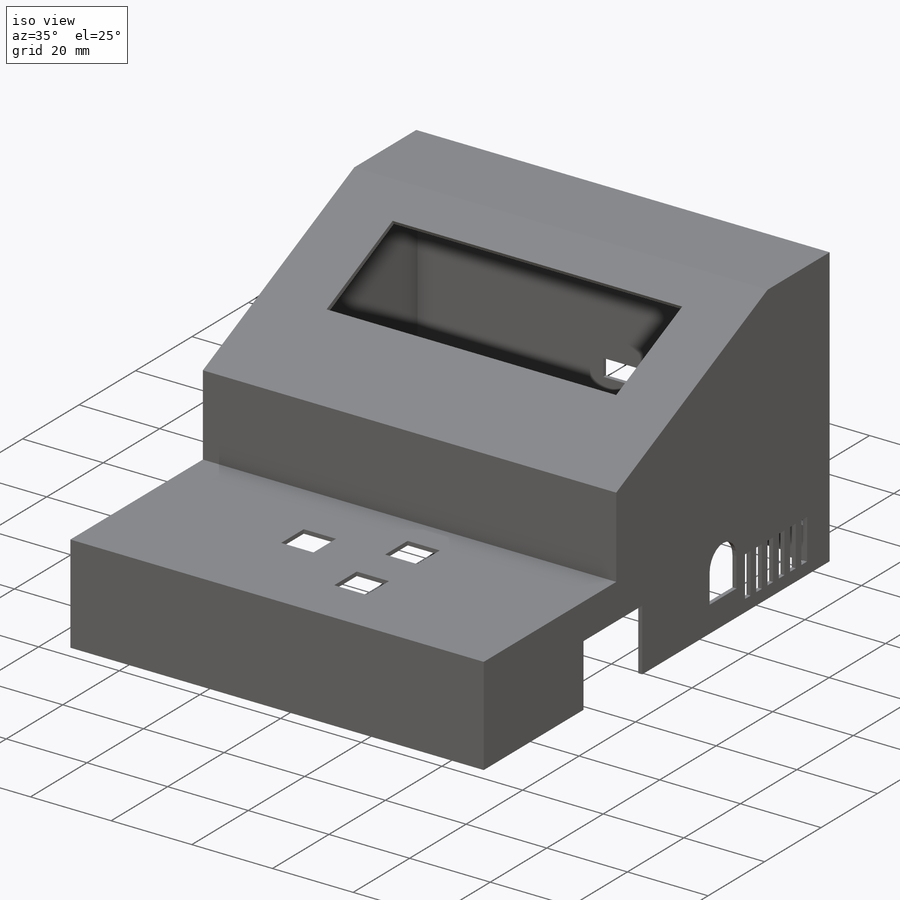
[diagram: iso view]
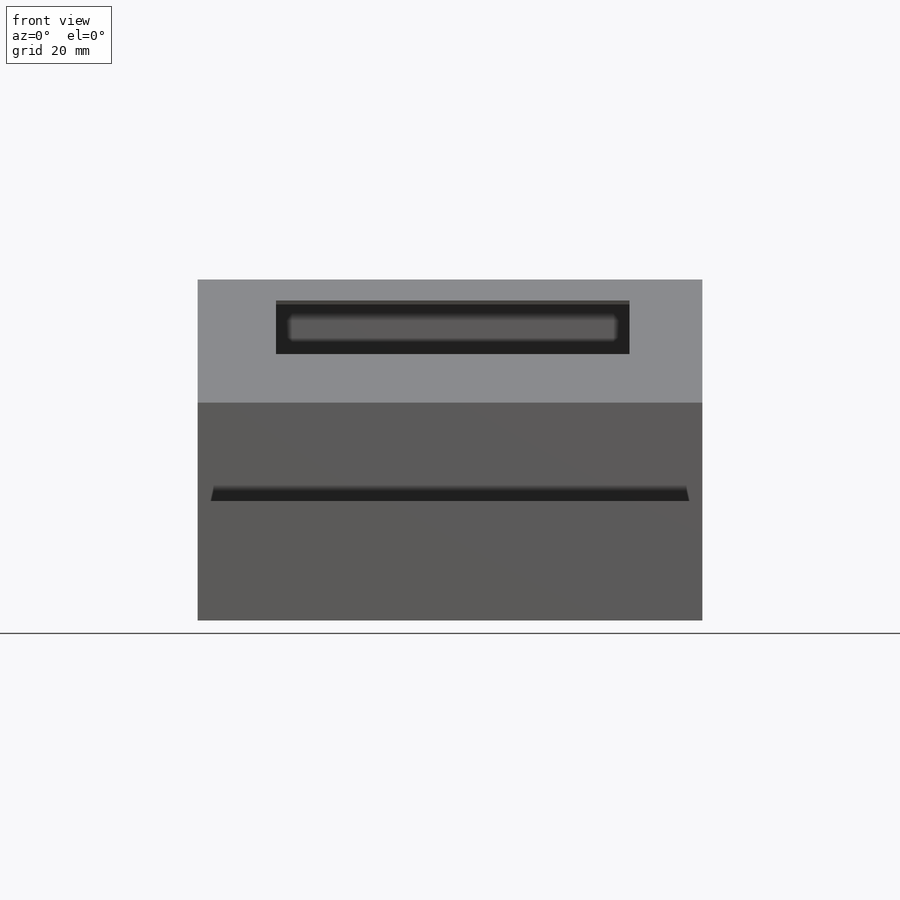
[diagram: front view]
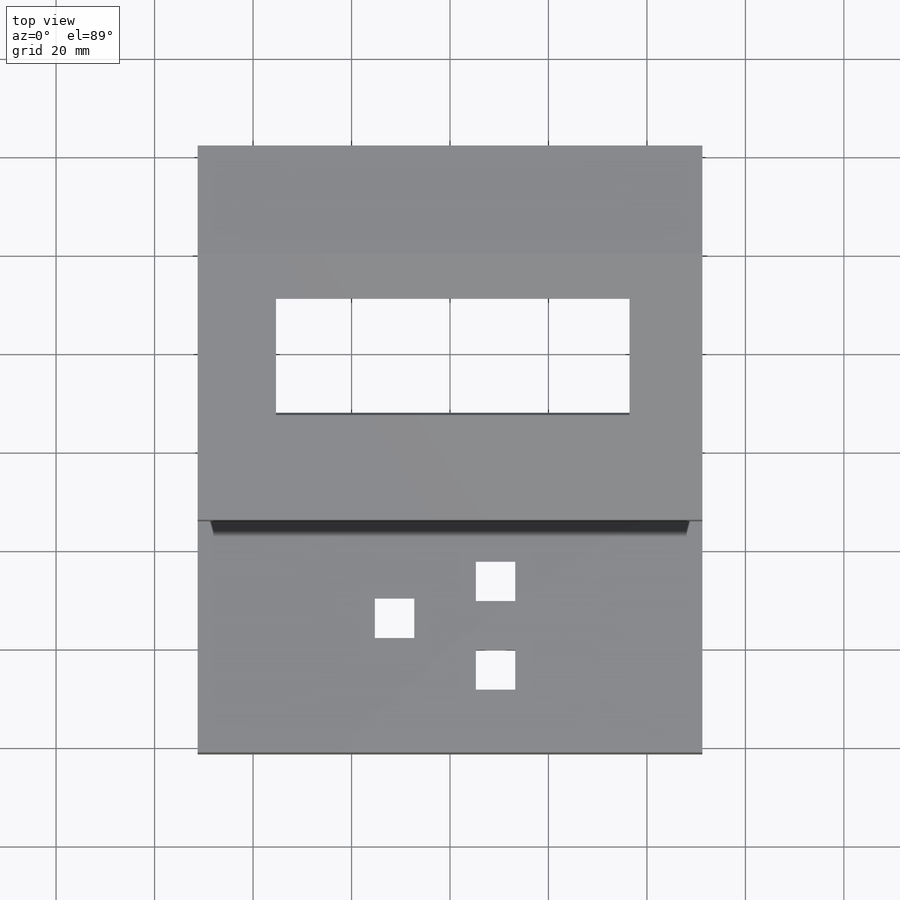
[diagram: top view]
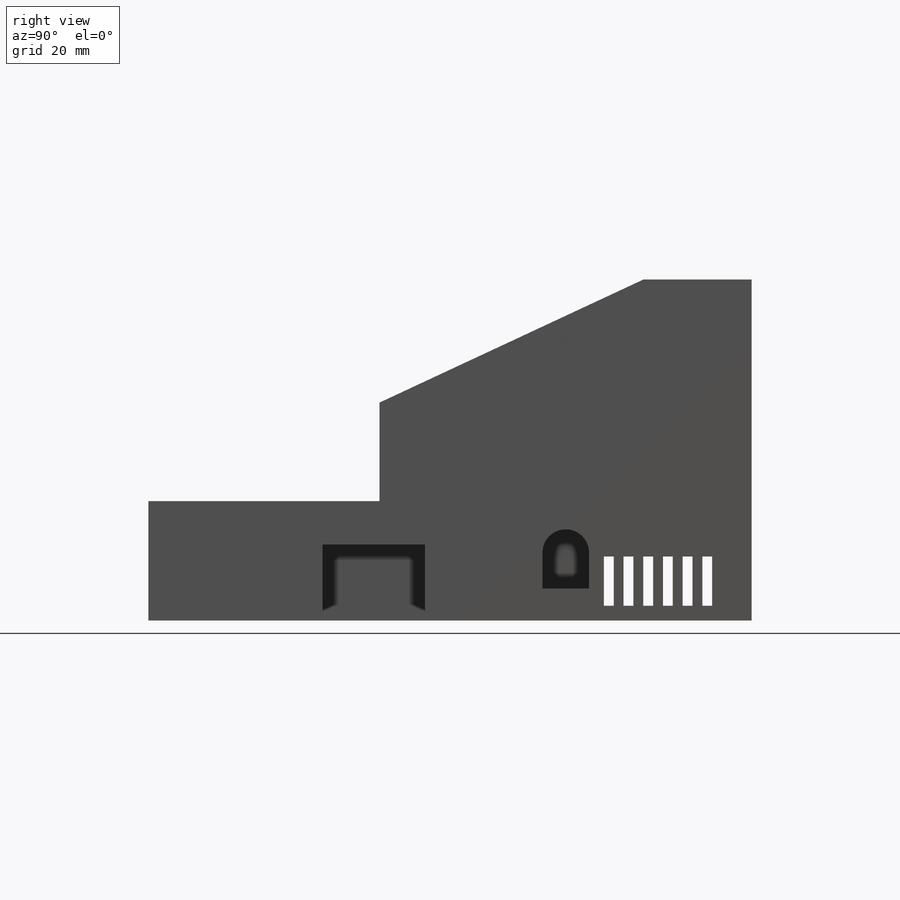
[diagram: right view]
SOLIDWORKS PART (.sldprt)
format: sldprt  version: not decoded by parser v0  size: 1,126,400 bytes
history: native  units: mm
features: sketch x52, cut_extrude x32, extrude x19, plane x3, pattern_linear x3, material x1 (+8 scaffold rows collapsed)
feature tree (118):
  scaffold x8  (default folders/planes/origin — collapsed)
  material  "Materiale <non specificato>"
  plane  "Piano frontale"
  plane  "Piano superiore"
  plane  "Piano destro"
  sketch  "Schizzo1"  dims[D1=124.0mm D2=104.0mm D3=~91.352485mm D4=100.5mm D5=120.5mm]
  extrude  "Estrusione-Estrusione1"  Depth=25.5mm
  sketch  "Schizzo3"  dims[D1=5.0mm D2=5.0mm D3=5.0mm D4=5.0mm D5=5.0mm D6=5.0mm D7=5.0mm D8=5.0mm]
  extrude  "Estrusione-Estrusione2"  Depth=10mm
  sketch  "Schizzo4"  dims[D1=47.67mm]
  extrude  "Estrusione-Estrusione3"  Depth=1.75mm
  sketch  "Schizzo5"  dims[c1.D1=23.75mm c1.D2=36.75mm c1.D3=8.0mm c1.D4=8.0mm c2.D2=36.75mm]
  cut_extrude  "Taglio-Estrusione1"  Depth=12.75mm
  sketch  "Schizzo8"  dims[D1=12.5mm D2=13.25mm D3=8.0mm D4=8.0mm D5=8.0mm D6=10.0mm D7=8.0mm]
  cut_extrude  "Taglio-Estrusione2"  Depth=12.75mm
  sketch  "Schizzo10"  dims[D1=53.61mm D2=53.61mm]
  extrude  "Estrusione-Estrusione4"  Depth=25mm
  sketch  "Schizzo11"
  extrude  "Estrusione-Estrusione5"  Depth=1.75mm
  sketch  "Schizzo13"
  extrude  "Estrusione-Estrusione6"  Depth=26.75mm
  sketch  "Schizzo14"
  cut_extrude  "Taglio-Estrusione3"  Depth=41.75mm
  sketch  "Schizzo16"  dims[D1=23.06mm D2=25.8mm D3=16.4mm D4=71.8mm]
  cut_extrude  "Taglio-Estrusione4"  Depth=10mm
  sketch  "Schizzo17"
  extrude  "Estrusione-Estrusione7"  Depth=20mm
  sketch  "Schizzo19"
  extrude  "Estrusione-Estrusione8"  Depth=0.25mm
  sketch  "Schizzo20"
  extrude  "Estrusione-Estrusione9"  Depth=0.25mm
  sketch  "Schizzo21"
  cut_extrude  "Taglio-Estrusione5"  Depth=0.25mm
  sketch  "Schizzo22"
  cut_extrude  "Taglio-Estrusione6"  Depth=0.25mm
  sketch  "Schizzo23"
  extrude  "Estrusione-Estrusione10"  Depth=0.25mm
  sketch  "Schizzo37"
  extrude  "Estrusione-Estrusione17"  Depth=20mm
  sketch  "Schizzo38"
  cut_extrude  "Taglio-Estrusione14"  Depth=20mm
  sketch  "Schizzo39"  dims[D1=1.75mm]
  extrude  "Estrusione-Estrusione18"  [1 undecoded]
  sketch  "Schizzo31"
  extrude  "Estrusione-Estrusione14"  Depth=0.25mm
  sketch  "Schizzo32"
  extrude  "Estrusione-Estrusione15"  Depth=0.25mm
  sketch  "Schizzo33"
  cut_extrude  "Taglio-Estrusione11"  Depth=0.25mm
  sketch  "Schizzo34"
  cut_extrude  "Taglio-Estrusione12"  Depth=0.25mm
  sketch  "Schizzo35"
  cut_extrude  "Taglio-Estrusione13"  Depth=0.02mm
  sketch  "Schizzo36"
  extrude  "Estrusione-Estrusione16"  Depth=0.02mm
  sketch  "Schizzo40"
  extrude  "Estrusione-Estrusione19"  Depth=0.25mm
  sketch  "Schizzo41"
  cut_extrude  "Taglio-Estrusione15"  Depth=0.25mm
  sketch  "Schizzo42"
  extrude  "Estrusione-Estrusione20"  Depth=0.25mm
  sketch  "Schizzo43"
  cut_extrude  "Taglio-Estrusione16"  Depth=0.25mm
  sketch  "Schizzo44"
  extrude  "Estrusione-Estrusione21"  Depth=0.25mm
  sketch  "Schizzo45"
  cut_extrude  "Taglio-Estrusione17"  Depth=0.25mm
  sketch  "Schizzo46"
  cut_extrude  "Taglio-Estrusione18"  Depth=0.25mm
  sketch  "Schizzo48"
  cut_extrude  "Taglio-Estrusione19"  Depth=3mm
  sketch  "Schizzo49"
  cut_extrude  "Taglio-Estrusione20"  Depth=22.5mm
  sketch  "Schizzo50"
  cut_extrude  "Taglio-Estrusione21"  Depth=55.5mm
  sketch  "Schizzo51"
  cut_extrude  "Taglio-Estrusione22"  Depth=0.75mm
  sketch  "Schizzo52"
  cut_extrude  "Taglio-Estrusione23"  Depth=0.75mm
  sketch  "Schizzo53"
  cut_extrude  "Taglio-Estrusione24"  Depth=0.75mm
  sketch  "Schizzo54"
  cut_extrude  "Taglio-Estrusione25"  Depth=0.75mm
  sketch  "Schizzo55"
  cut_extrude  "Taglio-Estrusione26"  Depth=0.75mm
  sketch  "Schizzo56"
  cut_extrude  "Taglio-Estrusione27"  Depth=0.75mm
  sketch  "Schizzo57"
  cut_extrude  "Taglio-Estrusione28"  Depth=0.75mm
  sketch  "Schizzo3D1"
  cut_extrude  "Taglio-Estrusione29"  Depth=10mm
  sketch  "Schizzo58"
  sketch  "Schizzo59"  dims[D1=8.2mm D2=4.2mm D3=47.05mm D4=26.9mm]
  cut_extrude  "Taglio-Estrusione30"  Depth=10mm
  sketch  "Schizzo60"  dims[D1=33.0mm D2=9.5mm D3=6.5mm D4=7.25mm]
  cut_extrude  "Taglio-Estrusione31"  Depth=10mm
  sketch  "Schizzo61"  dims[D1=5.5mm D2=5.5mm D3=5.5mm D4=5.5mm D5=5.5mm D6=5.5mm D7=5.5mm D8=5.0mm]
  extrude  "Estrusione-Estrusione22"  Depth=8mm
  sketch  "Schizzo62"  dims[D1=1.8mm D2=1.8mm D3=1.8mm D4=1.8mm]
  cut_extrude  "Taglio-Estrusione32"  Depth=10mm
  sketch  "Schizzo63"  dims[D1=35.35mm D2=56.15mm D3=15.4mm]
  cut_extrude  "Taglio-Estrusione33"  Depth=10mm
  sketch  "Schizzo64"  dims[D2=4.0mm D1=22.25mm D3=6.0mm]
  cut_extrude  "Taglio-Estrusione34"  Depth=10mm
  sketch  "Schizzo65"  dims[D1=2.0mm D2=30.0mm D3=10.0mm D4=3.0mm]
  cut_extrude  "Taglio-Estrusione35"  Depth=111mm
  pattern_linear  "Ripetizione a L1"  Count1=6 Count2=1 Spacing1=4mm Spacing2=50mm
  sketch  "Schizzo66"  dims[D1=2.0mm D2=10.0mm D3=3.0mm]
  cut_extrude  "Taglio-Estrusione36"  Depth=5mm
  pattern_linear  "Ripetizione a L2"  Count1=6 Count2=1 Spacing1=4mm Spacing2=50mm
  pattern_linear  "Ripetizione a L3"  Count1=6 Count2=1 Spacing1=4mm Spacing2=50mm
decode coverage: 69 of 106 modeling features carry decoded parameters
note: ~ marks probable driven/reference dimensions
note: 1 parameter value undecoded
note: suppression state not decoded; provenance and decode notes live in map.json
